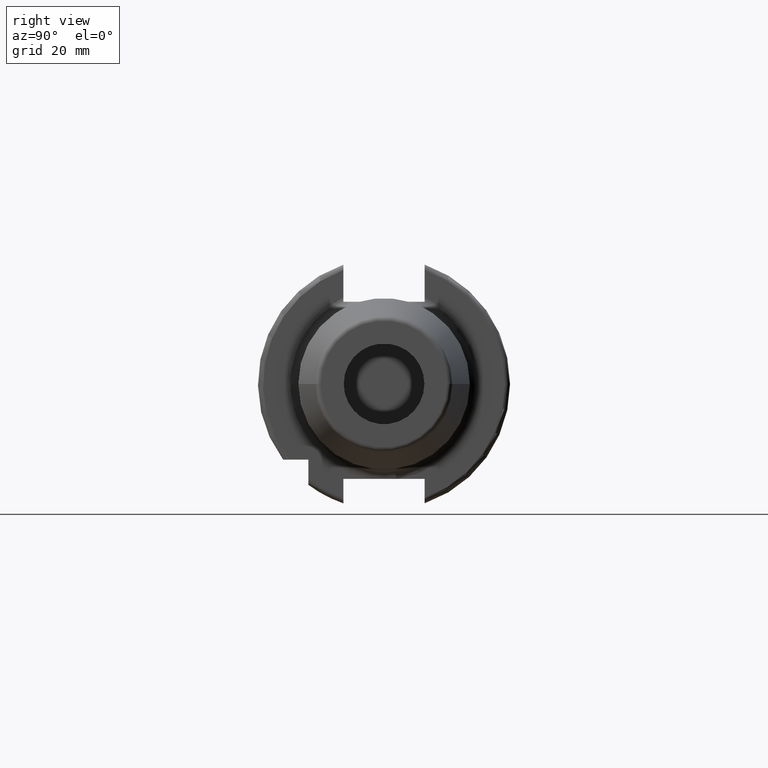
[diagram: clean part render]
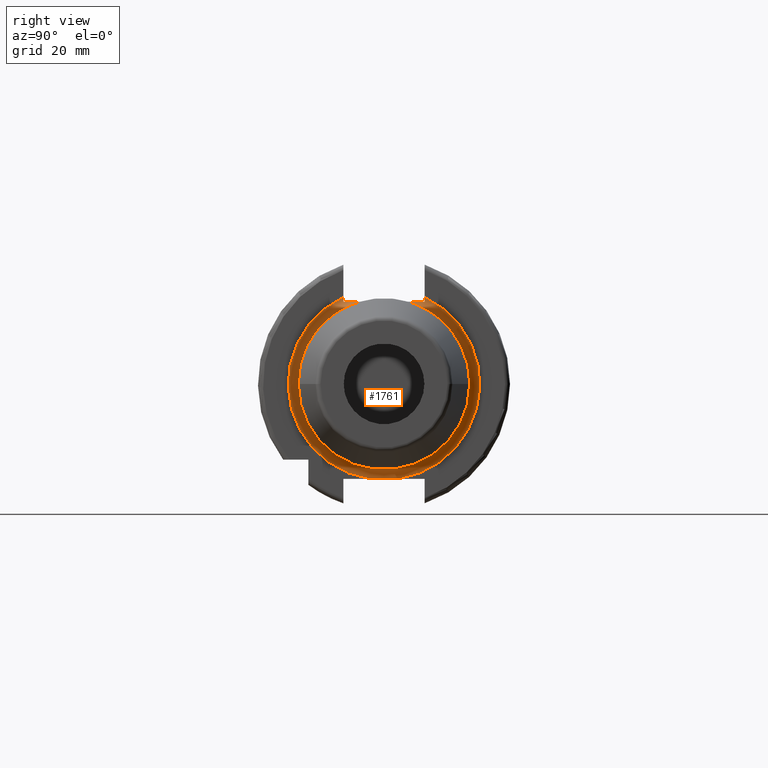
[diagram: same view with one face highlighted and labeled with its STEP entity id]
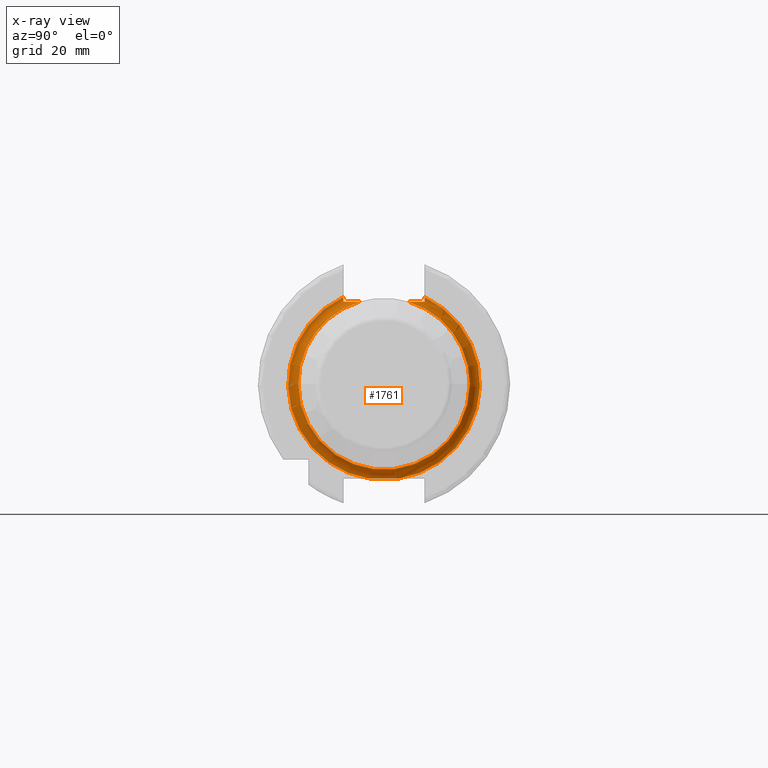
[diagram: x-ray of the same camera — body ghosted, the highlighted face saturated]
A machine part, right view. The second image highlights one B-rep face of the part: STEP entity #1761.
The next image is the same camera in x-ray: the body ghosted, the highlighted face saturated — about 0% of this face is hidden behind the body in this view.
In plain terms, the highlighted toroidal blend (fillet) surface has major radius 19 mm and minor (blend) radius 2 mm.
Its self-contained STEP definition (entity closure, byte-faithful):
#172=CARTESIAN_POINT('',(2.105E1,0.E0,0.E0));
#173=DIRECTION('',(1.E0,0.E0,0.E0));
#174=DIRECTION('',(0.E0,-1.E0,0.E0));
#175=AXIS2_PLACEMENT_3D('',#172,#173,#174);
#177=CARTESIAN_POINT('',(2.105E1,4.828043081829E0,1.63E1));
#178=CARTESIAN_POINT('',(2.098640537722E1,4.828043081829E0,1.63E1));
#179=CARTESIAN_POINT('',(2.086001766664E1,4.849268798206E0,1.63E1));
#180=CARTESIAN_POINT('',(2.067086877788E1,4.944096958534E0,1.63E1));
#181=CARTESIAN_POINT('',(2.048805250490E1,5.095459744599E0,1.63E1));
#182=CARTESIAN_POINT('',(2.031684622556E1,5.289662737250E0,1.63E1));
#183=CARTESIAN_POINT('',(2.015804231256E1,5.514823780248E0,1.63E1));
#184=CARTESIAN_POINT('',(2.000672784036E1,5.770670590179E0,1.63E1));
#185=CARTESIAN_POINT('',(1.986057015352E1,6.058736575249E0,1.63E1));
#186=CARTESIAN_POINT('',(1.971910227074E1,6.380298569882E0,1.63E1));
#187=CARTESIAN_POINT('',(1.958362477113E1,6.734599035284E0,1.63E1));
#188=CARTESIAN_POINT('',(1.945426859071E1,7.126361205044E0,1.63E1));
#189=CARTESIAN_POINT('',(1.933275552083E1,7.560889749176E0,1.63E1));
#190=CARTESIAN_POINT('',(1.925959424427E1,7.881739796003E0,1.63E1));
#191=CARTESIAN_POINT('',(1.922607508181E1,8.05E0,1.63E1));
#193=CARTESIAN_POINT('',(1.922607508181E1,8.05E0,1.63E1));
#194=CARTESIAN_POINT('',(1.916729360032E1,8.05E0,1.644572600407E1));
#195=CARTESIAN_POINT('',(1.908022128447E1,8.05E0,1.674355206539E1));
#196=CARTESIAN_POINT('',(1.905E1,8.05E0,1.705279931764E1));
#197=CARTESIAN_POINT('',(1.905E1,8.05E0,1.721038930413E1));
#199=CARTESIAN_POINT('',(1.905E1,0.E0,0.E0));
#200=DIRECTION('',(-1.E0,0.E0,0.E0));
#201=DIRECTION('',(0.E0,4.236842105263E-1,9.058099633757E-1));
#202=AXIS2_PLACEMENT_3D('',#199,#200,#201);
#204=CARTESIAN_POINT('',(1.905E1,2.749780728459E0,-1.879997748221E1));
#205=CARTESIAN_POINT('',(1.905E1,2.138056714292E0,-1.879997748221E1));
#206=CARTESIAN_POINT('',(1.906054825273E1,9.148082644285E-1,-1.880000887491E1));
#207=CARTESIAN_POINT('',(1.906054826984E1,-9.148693441978E-1,
-1.880000271450E1));
#208=CARTESIAN_POINT('',(1.905E1,-2.137866903143E0,-1.879998774956E1));
#209=CARTESIAN_POINT('',(1.905E1,-2.749591738811E0,-1.879998774956E1));
#211=CARTESIAN_POINT('',(1.905E1,0.E0,0.E0));
#212=DIRECTION('',(-1.E0,0.E0,0.E0));
#213=DIRECTION('',(0.E0,-1.447071294223E-1,-9.894745305941E-1));
#214=AXIS2_PLACEMENT_3D('',#211,#212,#213);
#216=CARTESIAN_POINT('',(1.905E1,-8.05E0,1.721038930414E1));
#217=CARTESIAN_POINT('',(1.905E1,-8.05E0,1.705279931764E1));
#218=CARTESIAN_POINT('',(1.908022128447E1,-8.05E0,1.674355206539E1));
#219=CARTESIAN_POINT('',(1.916729360032E1,-8.05E0,1.644572600407E1));
#220=CARTESIAN_POINT('',(1.922607508181E1,-8.05E0,1.63E1));
#222=CARTESIAN_POINT('',(2.105E1,-4.828043081829E0,1.63E1));
#223=CARTESIAN_POINT('',(2.098035376867E1,-4.828043081829E0,1.63E1));
#224=CARTESIAN_POINT('',(2.084312226104E1,-4.853360192824E0,1.63E1));
#225=CARTESIAN_POINT('',(2.064007223953E1,-4.964262231221E0,1.63E1));
#226=CARTESIAN_POINT('',(2.044986301679E1,-5.133328230501E0,1.63E1));
#227=CARTESIAN_POINT('',(2.026836271995E1,-5.352290793720E0,1.63E1));
#228=CARTESIAN_POINT('',(2.009870508693E1,-5.609213514972E0,1.63E1));
#229=CARTESIAN_POINT('',(1.994274123012E1,-5.891231490317E0,1.63E1));
#230=CARTESIAN_POINT('',(1.979646342361E1,-6.198804036021E0,1.63E1));
#231=CARTESIAN_POINT('',(1.965755410922E1,-6.535118747798E0,1.63E1));
#232=CARTESIAN_POINT('',(1.952657039139E1,-6.900622222424E0,1.63E1));
#233=CARTESIAN_POINT('',(1.940854239765E1,-7.283294497851E0,1.63E1));
#234=CARTESIAN_POINT('',(1.930772979269E1,-7.666902689973E0,1.63E1));
#235=CARTESIAN_POINT('',(1.925151077107E1,-7.922317386543E0,1.63E1));
#236=CARTESIAN_POINT('',(1.922607508181E1,-8.05E0,1.63E1));
#251=CARTESIAN_POINT('',(2.105E1,0.E0,0.E0));
#252=DIRECTION('',(1.E0,0.E0,0.E0));
#253=DIRECTION('',(0.E0,-2.840025342253E-1,9.588235294118E-1));
#254=AXIS2_PLACEMENT_3D('',#251,#252,#253);
#264=CARTESIAN_POINT('',(2.105E1,0.E0,0.E0));
#265=DIRECTION('',(1.E0,0.E0,0.E0));
#266=DIRECTION('',(0.E0,1.E0,0.E0));
#267=AXIS2_PLACEMENT_3D('',#264,#265,#266);
#1451=CARTESIAN_POINT('',(2.105E1,-4.828043081829E0,1.63E1));
#1452=CARTESIAN_POINT('',(2.105E1,-1.7E1,0.E0));
#1453=VERTEX_POINT('',#1451);
#1454=VERTEX_POINT('',#1452);
#1455=CARTESIAN_POINT('',(2.105E1,1.7E1,1.077524196418E-11));
#1456=VERTEX_POINT('',#1455);
#1457=CARTESIAN_POINT('',(2.105E1,4.828043081829E0,1.63E1));
#1458=VERTEX_POINT('',#1457);
#1459=VERTEX_POINT('',#216);
#1460=VERTEX_POINT('',#220);
#1461=CARTESIAN_POINT('',(1.905E1,-2.749435459024E0,-1.880001608129E1));
#1462=VERTEX_POINT('',#1461);
#1467=CARTESIAN_POINT('',(1.905E1,2.749780728459E0,-1.879997748221E1));
#1468=VERTEX_POINT('',#1467);
#1469=CARTESIAN_POINT('',(1.905E1,8.05E0,1.721038930413E1));
#1470=VERTEX_POINT('',#1469);
#1471=VERTEX_POINT('',#191);
#1739=CARTESIAN_POINT('',(2.105E1,0.E0,0.E0));
#1740=DIRECTION('',(1.E0,0.E0,0.E0));
#1741=DIRECTION('',(0.E0,1.485959642860E-3,-9.999988959614E-1));
#1742=AXIS2_PLACEMENT_3D('',#1739,#1740,#1741);
#1743=TOROIDAL_SURFACE('',#1742,1.9E1,2.E0);
#1745=ORIENTED_EDGE('',*,*,#1744,.T.);
#1747=ORIENTED_EDGE('',*,*,#1746,.T.);
#1748=ORIENTED_EDGE('',*,*,#1641,.T.);
#1749=ORIENTED_EDGE('',*,*,#1668,.T.);
#1750=ORIENTED_EDGE('',*,*,#1727,.T.);
#1752=ORIENTED_EDGE('',*,*,#1751,.T.);
#1753=ORIENTED_EDGE('',*,*,#1703,.T.);
#1755=ORIENTED_EDGE('',*,*,#1754,.T.);
#1756=ORIENTED_EDGE('',*,*,#1649,.F.);
#1758=ORIENTED_EDGE('',*,*,#1757,.T.);
#1759=EDGE_LOOP('',(#1745,#1747,#1748,#1749,#1750,#1752,#1753,#1755,#1756,
#1758));
#1760=FACE_OUTER_BOUND('',#1759,.F.);
#1761=ADVANCED_FACE('',(#1760),#1743,.F.);
#176=CIRCLE('',#175,1.7E1);
#192=B_SPLINE_CURVE_WITH_KNOTS('',3,(#177,#178,#179,#180,#181,#182,#183,#184,
#185,#186,#187,#188,#189,#190,#191),.UNSPECIFIED.,.F.,.F.,(4,1,1,1,1,1,1,1,1,1,
1,1,4),(0.E0,8.333333333333E-2,1.666666666667E-1,2.5E-1,3.333333333333E-1,
4.166666666667E-1,5.E-1,5.833333333333E-1,6.666666666667E-1,7.5E-1,
8.333333333333E-1,9.166666666667E-1,1.E0),.UNSPECIFIED.);
#198=B_SPLINE_CURVE_WITH_KNOTS('',3,(#193,#194,#195,#196,#197),.UNSPECIFIED.,
.F.,.F.,(4,1,4),(0.E0,5.E-1,1.E0),.UNSPECIFIED.);
#203=CIRCLE('',#202,1.9E1);
#210=B_SPLINE_CURVE_WITH_KNOTS('',3,(#204,#205,#206,#207,#208,#209),
.UNSPECIFIED.,.F.,.F.,(4,1,1,4),(0.E0,3.333333333333E-1,6.666666666667E-1,1.E0),
.UNSPECIFIED.);
#215=CIRCLE('',#214,1.9E1);
#221=B_SPLINE_CURVE_WITH_KNOTS('',3,(#216,#217,#218,#219,#220),.UNSPECIFIED.,
.F.,.F.,(4,1,4),(0.E0,5.E-1,1.E0),.UNSPECIFIED.);
#237=B_SPLINE_CURVE_WITH_KNOTS('',3,(#222,#223,#224,#225,#226,#227,#228,#229,
#230,#231,#232,#233,#234,#235,#236),.UNSPECIFIED.,.F.,.F.,(4,1,1,1,1,1,1,1,1,1,
1,1,4),(0.E0,8.333333333333E-2,1.666666666667E-1,2.5E-1,3.333333333333E-1,
4.166666666667E-1,5.E-1,5.833333333333E-1,6.666666666667E-1,7.5E-1,
8.333333333333E-1,9.166666666667E-1,1.E0),.UNSPECIFIED.);
#255=CIRCLE('',#254,1.7E1);
#268=CIRCLE('',#267,1.7E1);
#1641=EDGE_CURVE('',#1458,#1471,#192,.T.);
#1649=EDGE_CURVE('',#1453,#1460,#237,.T.);
#1668=EDGE_CURVE('',#1471,#1470,#198,.T.);
#1703=EDGE_CURVE('',#1462,#1459,#215,.T.);
#1727=EDGE_CURVE('',#1470,#1468,#203,.T.);
#1744=EDGE_CURVE('',#1454,#1456,#176,.T.);
#1746=EDGE_CURVE('',#1456,#1458,#268,.T.);
#1751=EDGE_CURVE('',#1468,#1462,#210,.T.);
#1754=EDGE_CURVE('',#1459,#1460,#221,.T.);
#1757=EDGE_CURVE('',#1453,#1454,#255,.T.);